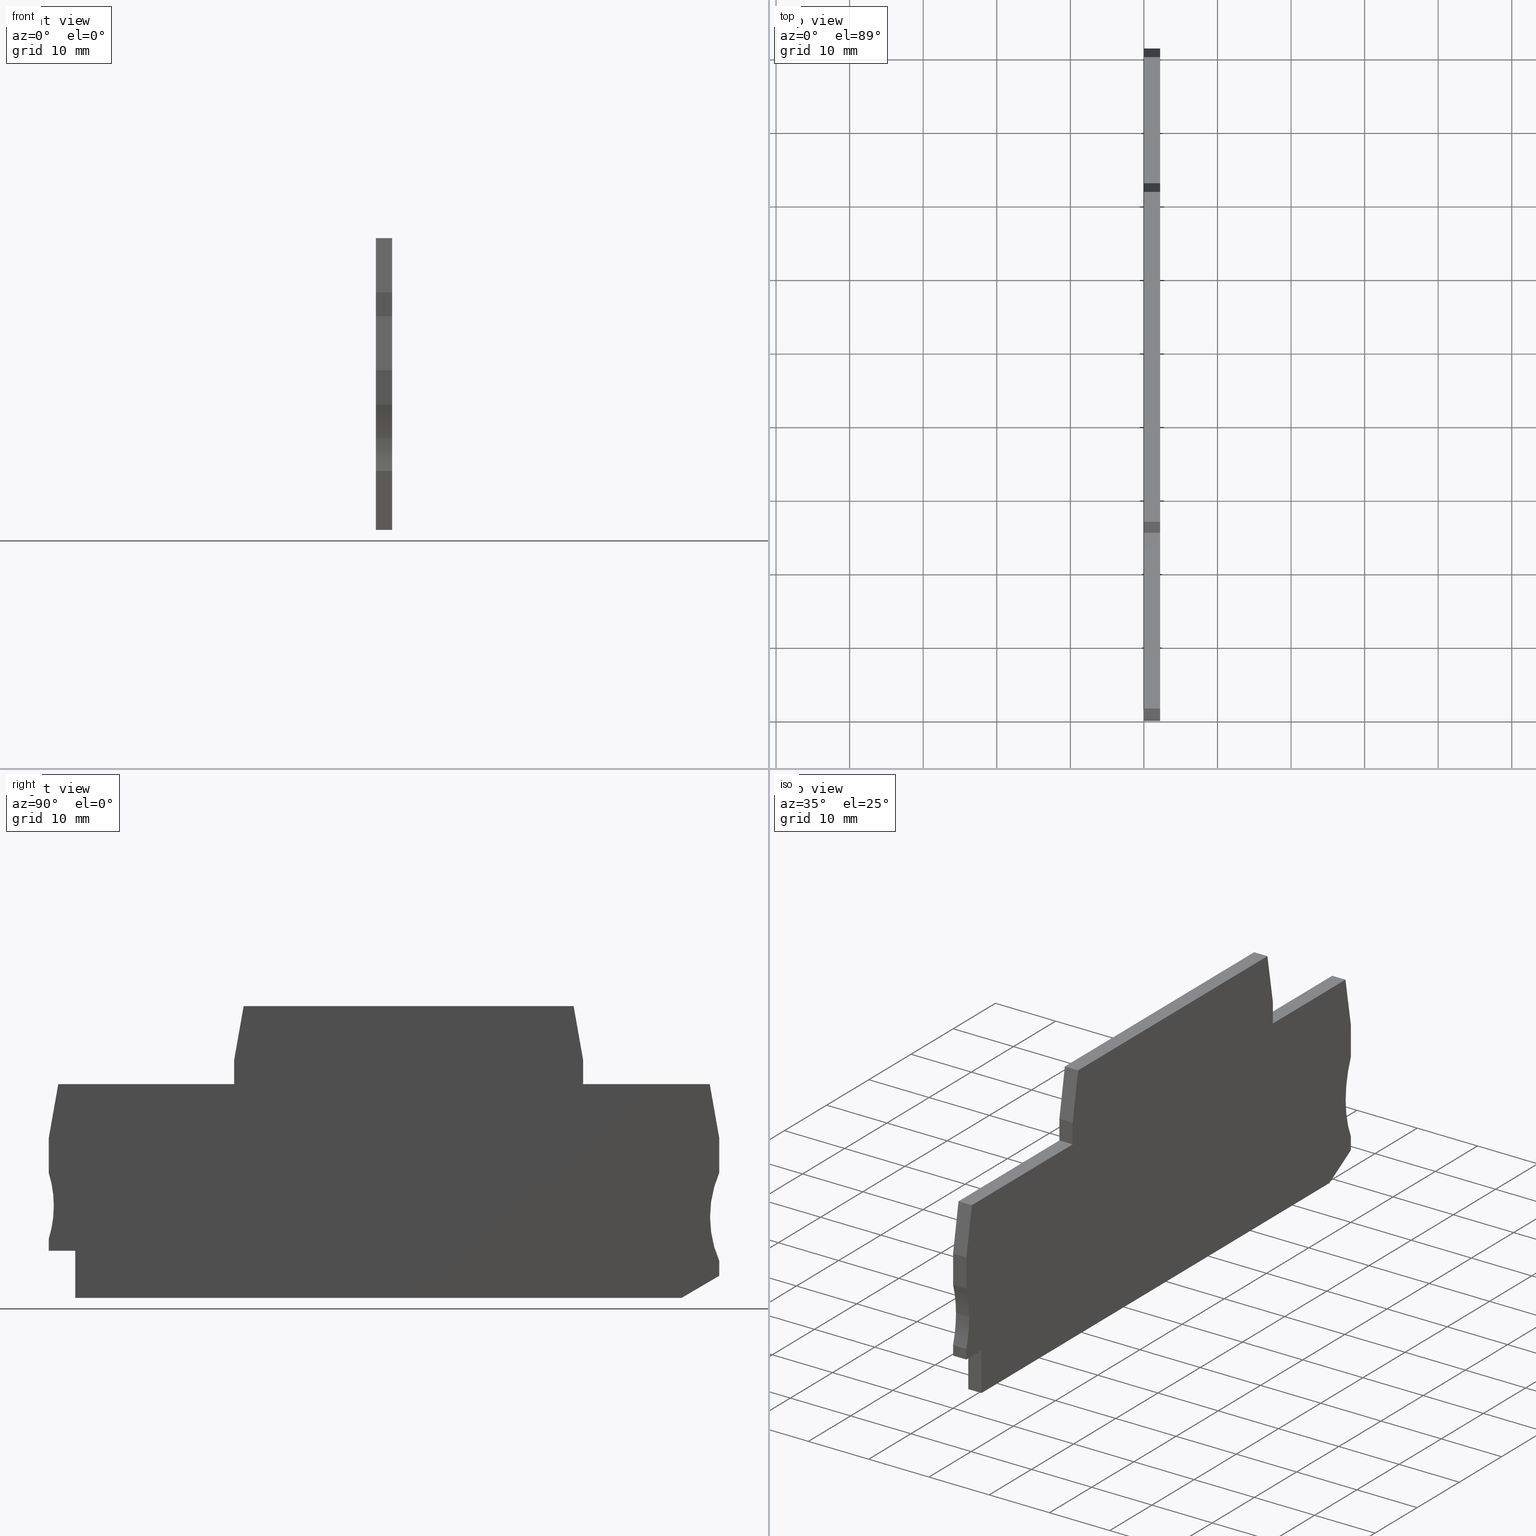
[diagram: canonical four-view strip — front | top / right | iso, engineering-drawing reading convention]
A machine part, canonical four-view strip (front | top / right | iso — engineering-drawing reading convention). The complete STEP part file that produces these views, byte-faithful:
ISO-10303-21;
HEADER;
FILE_DESCRIPTION(('STEP AP214'),'1');
FILE_NAME('cctmp_0A044B91-6385-4FD1-A2AD-C32BCBC456A5_2023_07_24_21_51_38_0145..stp','2023-07-24T19:51:38',('SIEMENS A&D'),('CADClick - www.CADClick.com'),'Spatial InterOp 3D postprocessed',' ','unknown authorization');
FILE_SCHEMA(('AUTOMOTIVE_DESIGN'));
ENDSEC;
DATA;
#1=MECHANICAL_DESIGN_GEOMETRIC_PRESENTATION_REPRESENTATION(' ',(#10,#11,#12,#13,#14,#15,#16,#17,#18,#19,#20,#21,#22,#23,#24,#25,#26,#27,#28,#29,#30,#31,#32,#33),#6);
#2=PRODUCT_DEFINITION_CONTEXT('',#34,'design');
#3=APPLICATION_PROTOCOL_DEFINITION('INTERNATIONAL STANDARD','automotive_design',1994,#34);
#4=PRODUCT_CATEGORY_RELATIONSHIP('NONE','NONE',#35,#36);
#5=SHAPE_DEFINITION_REPRESENTATION(#37,#38);
#6= (GEOMETRIC_REPRESENTATION_CONTEXT(3)GLOBAL_UNCERTAINTY_ASSIGNED_CONTEXT((#41))GLOBAL_UNIT_ASSIGNED_CONTEXT((#43,#44,#45))REPRESENTATION_CONTEXT('NONE','WORKSPACE'));
#10=STYLED_ITEM('',(#47),#48);
#11=STYLED_ITEM('',(#49),#50);
#12=STYLED_ITEM('',(#51),#52);
#13=STYLED_ITEM('',(#53),#54);
#14=STYLED_ITEM('',(#55),#56);
#15=STYLED_ITEM('',(#57),#58);
#16=STYLED_ITEM('',(#59),#60);
#17=STYLED_ITEM('',(#61),#62);
#18=STYLED_ITEM('',(#63),#64);
#19=STYLED_ITEM('',(#65),#66);
#20=STYLED_ITEM('',(#67),#68);
#21=STYLED_ITEM('',(#69),#70);
#22=STYLED_ITEM('',(#71),#72);
#23=STYLED_ITEM('',(#73),#74);
#24=STYLED_ITEM('',(#75),#76);
#25=STYLED_ITEM('',(#77),#78);
#26=STYLED_ITEM('',(#79),#80);
#27=STYLED_ITEM('',(#81),#82);
#28=STYLED_ITEM('',(#83),#84);
#29=STYLED_ITEM('',(#85),#86);
#30=STYLED_ITEM('',(#87),#88);
#31=STYLED_ITEM('',(#89),#90);
#32=STYLED_ITEM('',(#91),#92);
#33=STYLED_ITEM('',(#93),#94);
#34=APPLICATION_CONTEXT(' ');
#35=PRODUCT_CATEGORY('part','NONE');
#36=PRODUCT_RELATED_PRODUCT_CATEGORY('detail',' ',(#95));
#37=PRODUCT_DEFINITION_SHAPE('NONE','NONE',#96);
#38=ADVANCED_BREP_SHAPE_REPRESENTATION('2023_07_24_21_51_38_0145',(#94,#97),#6);
#41=UNCERTAINTY_MEASURE_WITH_UNIT(LENGTH_MEASURE(1.0E-006),#43,'','');
#43= (CONVERSION_BASED_UNIT('MILLIMETRE',#100)LENGTH_UNIT()NAMED_UNIT(#103));
#44= (NAMED_UNIT(#105)PLANE_ANGLE_UNIT()SI_UNIT($,.RADIAN.));
#45= (NAMED_UNIT(#105)SOLID_ANGLE_UNIT()SI_UNIT($,.STERADIAN.));
#47=PRESENTATION_STYLE_ASSIGNMENT((#111));
#48=ADVANCED_FACE('',(#112),#113,.F.);
#49=PRESENTATION_STYLE_ASSIGNMENT((#114));
#50=ADVANCED_FACE('',(#115),#116,.F.);
#51=PRESENTATION_STYLE_ASSIGNMENT((#117));
#52=ADVANCED_FACE('',(#118),#119,.T.);
#53=PRESENTATION_STYLE_ASSIGNMENT((#120));
#54=ADVANCED_FACE('',(#121),#122,.T.);
#55=PRESENTATION_STYLE_ASSIGNMENT((#123));
#56=ADVANCED_FACE('',(#124),#125,.F.);
#57=PRESENTATION_STYLE_ASSIGNMENT((#126));
#58=ADVANCED_FACE('',(#127),#128,.T.);
#59=PRESENTATION_STYLE_ASSIGNMENT((#129));
#60=ADVANCED_FACE('',(#130),#131,.T.);
#61=PRESENTATION_STYLE_ASSIGNMENT((#132));
#62=ADVANCED_FACE('',(#133),#134,.T.);
#63=PRESENTATION_STYLE_ASSIGNMENT((#135));
#64=ADVANCED_FACE('',(#136),#137,.T.);
#65=PRESENTATION_STYLE_ASSIGNMENT((#138));
#66=ADVANCED_FACE('',(#139),#140,.T.);
#67=PRESENTATION_STYLE_ASSIGNMENT((#141));
#68=ADVANCED_FACE('',(#142),#143,.T.);
#69=PRESENTATION_STYLE_ASSIGNMENT((#144));
#70=ADVANCED_FACE('',(#145),#146,.T.);
#71=PRESENTATION_STYLE_ASSIGNMENT((#147));
#72=ADVANCED_FACE('',(#148),#149,.T.);
#73=PRESENTATION_STYLE_ASSIGNMENT((#150));
#74=ADVANCED_FACE('',(#151),#152,.T.);
#75=PRESENTATION_STYLE_ASSIGNMENT((#153));
#76=ADVANCED_FACE('',(#154),#155,.T.);
#77=PRESENTATION_STYLE_ASSIGNMENT((#156));
#78=ADVANCED_FACE('',(#157),#158,.T.);
#79=PRESENTATION_STYLE_ASSIGNMENT((#159));
#80=ADVANCED_FACE('',(#160),#161,.T.);
#81=PRESENTATION_STYLE_ASSIGNMENT((#162));
#82=ADVANCED_FACE('',(#163),#164,.T.);
#83=PRESENTATION_STYLE_ASSIGNMENT((#165));
#84=ADVANCED_FACE('',(#166),#167,.F.);
#85=PRESENTATION_STYLE_ASSIGNMENT((#168));
#86=ADVANCED_FACE('',(#169),#170,.T.);
#87=PRESENTATION_STYLE_ASSIGNMENT((#171));
#88=ADVANCED_FACE('',(#172),#173,.T.);
#89=PRESENTATION_STYLE_ASSIGNMENT((#174));
#90=ADVANCED_FACE('',(#175),#176,.F.);
#91=PRESENTATION_STYLE_ASSIGNMENT((#177));
#92=ADVANCED_FACE('',(#178),#179,.T.);
#93=PRESENTATION_STYLE_ASSIGNMENT((#180));
#94=MANIFOLD_SOLID_BREP('2023_07_24_21_51_38_0145',#181);
#95=PRODUCT('2023_07_24_21_51_38_0145','','PART--DESC',(#182));
#96=PRODUCT_DEFINITION('','NONE',#183,#2);
#97=AXIS2_PLACEMENT_3D('',#184,#185,#186);
#100=LENGTH_MEASURE_WITH_UNIT(LENGTH_MEASURE(1.0),#187);
#103=DIMENSIONAL_EXPONENTS(1.0,0.0,0.0,0.0,0.0,0.0,0.0);
#105=DIMENSIONAL_EXPONENTS(0.0,0.0,0.0,0.0,0.0,0.0,0.0);
#111=SURFACE_STYLE_USAGE(.BOTH.,#188);
#112=FACE_OUTER_BOUND('',#189,.T.);
#113=CYLINDRICAL_SURFACE('',#190,15.0);
#114=SURFACE_STYLE_USAGE(.BOTH.,#188);
#115=FACE_OUTER_BOUND('',#192,.T.);
#116=CYLINDRICAL_SURFACE('',#193,15.0);
#117=SURFACE_STYLE_USAGE(.BOTH.,#188);
#118=FACE_OUTER_BOUND('',#195,.T.);
#119=PLANE('',#196);
#120=SURFACE_STYLE_USAGE(.BOTH.,#188);
#121=FACE_OUTER_BOUND('',#198,.T.);
#122=PLANE('',#199);
#123=SURFACE_STYLE_USAGE(.BOTH.,#188);
#124=FACE_OUTER_BOUND('',#201,.T.);
#125=CYLINDRICAL_SURFACE('',#202,15.0);
#126=SURFACE_STYLE_USAGE(.BOTH.,#188);
#127=FACE_OUTER_BOUND('',#204,.T.);
#128=PLANE('',#205);
#129=SURFACE_STYLE_USAGE(.BOTH.,#188);
#130=FACE_OUTER_BOUND('',#207,.T.);
#131=PLANE('',#208);
#132=SURFACE_STYLE_USAGE(.BOTH.,#188);
#133=FACE_OUTER_BOUND('',#210,.T.);
#134=PLANE('',#211);
#135=SURFACE_STYLE_USAGE(.BOTH.,#188);
#136=FACE_OUTER_BOUND('',#213,.T.);
#137=PLANE('',#214);
#138=SURFACE_STYLE_USAGE(.BOTH.,#188);
#139=FACE_OUTER_BOUND('',#216,.T.);
#140=PLANE('',#217);
#141=SURFACE_STYLE_USAGE(.BOTH.,#188);
#142=FACE_OUTER_BOUND('',#219,.T.);
#143=PLANE('',#220);
#144=SURFACE_STYLE_USAGE(.BOTH.,#188);
#145=FACE_OUTER_BOUND('',#222,.T.);
#146=PLANE('',#223);
#147=SURFACE_STYLE_USAGE(.BOTH.,#188);
#148=FACE_OUTER_BOUND('',#225,.T.);
#149=PLANE('',#226);
#150=SURFACE_STYLE_USAGE(.BOTH.,#188);
#151=FACE_OUTER_BOUND('',#228,.T.);
#152=PLANE('',#229);
#153=SURFACE_STYLE_USAGE(.BOTH.,#188);
#154=FACE_OUTER_BOUND('',#231,.T.);
#155=PLANE('',#232);
#156=SURFACE_STYLE_USAGE(.BOTH.,#188);
#157=FACE_OUTER_BOUND('',#234,.T.);
#158=PLANE('',#235);
#159=SURFACE_STYLE_USAGE(.BOTH.,#188);
#160=FACE_OUTER_BOUND('',#237,.T.);
#161=PLANE('',#238);
#162=SURFACE_STYLE_USAGE(.BOTH.,#188);
#163=FACE_OUTER_BOUND('',#240,.T.);
#164=PLANE('',#241);
#165=SURFACE_STYLE_USAGE(.BOTH.,#188);
#166=FACE_OUTER_BOUND('',#243,.T.);
#167=CYLINDRICAL_SURFACE('',#244,15.0);
#168=SURFACE_STYLE_USAGE(.BOTH.,#188);
#169=FACE_OUTER_BOUND('',#246,.T.);
#170=PLANE('',#247);
#171=SURFACE_STYLE_USAGE(.BOTH.,#188);
#172=FACE_OUTER_BOUND('',#249,.T.);
#173=PLANE('',#250);
#174=SURFACE_STYLE_USAGE(.BOTH.,#188);
#175=FACE_OUTER_BOUND('',#252,.T.);
#176=PLANE('',#253);
#177=SURFACE_STYLE_USAGE(.BOTH.,#188);
#178=FACE_OUTER_BOUND('',#255,.T.);
#179=PLANE('',#256);
#180=SURFACE_STYLE_USAGE(.BOTH.,#188);
#181=CLOSED_SHELL('',(#48,#50,#52,#54,#56,#58,#60,#62,#64,#66,#68,#70,#72,#74,#76,#78,#80,#82,#84,#86,#88,#90,#92));
#182=PRODUCT_CONTEXT('',#34,'mechanical');
#183=PRODUCT_DEFINITION_FORMATION_WITH_SPECIFIED_SOURCE(' ','NONE',#95,.NOT_KNOWN.);
#184=CARTESIAN_POINT('',(0.0,0.0,0.0));
#185=DIRECTION('',(0.0,0.0,1.0));
#186=DIRECTION('',(1.0,0.0,0.0));
#187= (NAMED_UNIT(#103)LENGTH_UNIT()SI_UNIT(.MILLI.,.METRE.));
#188=SURFACE_SIDE_STYLE('',(#259));
#189=EDGE_LOOP('',(#260,#261,#262,#263));
#190=AXIS2_PLACEMENT_3D('',#264,#265,#266);
#192=EDGE_LOOP('',(#268,#269,#270,#271));
#193=AXIS2_PLACEMENT_3D('',#272,#273,#274);
#195=EDGE_LOOP('',(#276,#277,#278,#279));
#196=AXIS2_PLACEMENT_3D('',#280,#281,#282);
#198=EDGE_LOOP('',(#284,#285,#286,#287));
#199=AXIS2_PLACEMENT_3D('',#288,#289,#290);
#201=EDGE_LOOP('',(#292,#293,#294,#295));
#202=AXIS2_PLACEMENT_3D('',#296,#297,#298);
#204=EDGE_LOOP('',(#300,#301,#302,#303));
#205=AXIS2_PLACEMENT_3D('',#304,#305,#306);
#207=EDGE_LOOP('',(#308,#309,#310,#311));
#208=AXIS2_PLACEMENT_3D('',#312,#313,#314);
#210=EDGE_LOOP('',(#316,#317,#318,#319));
#211=AXIS2_PLACEMENT_3D('',#320,#321,#322);
#213=EDGE_LOOP('',(#324,#325,#326,#327));
#214=AXIS2_PLACEMENT_3D('',#328,#329,#330);
#216=EDGE_LOOP('',(#332,#333,#334,#335));
#217=AXIS2_PLACEMENT_3D('',#336,#337,#338);
#219=EDGE_LOOP('',(#340,#341,#342,#343));
#220=AXIS2_PLACEMENT_3D('',#344,#345,#346);
#222=EDGE_LOOP('',(#348,#349,#350,#351));
#223=AXIS2_PLACEMENT_3D('',#352,#353,#354);
#225=EDGE_LOOP('',(#356,#357,#358,#359));
#226=AXIS2_PLACEMENT_3D('',#360,#361,#362);
#228=EDGE_LOOP('',(#364,#365,#366,#367));
#229=AXIS2_PLACEMENT_3D('',#368,#369,#370);
#231=EDGE_LOOP('',(#372,#373,#374,#375));
#232=AXIS2_PLACEMENT_3D('',#376,#377,#378);
#234=EDGE_LOOP('',(#380,#381,#382,#383));
#235=AXIS2_PLACEMENT_3D('',#384,#385,#386);
#237=EDGE_LOOP('',(#388,#389,#390,#391));
#238=AXIS2_PLACEMENT_3D('',#392,#393,#394);
#240=EDGE_LOOP('',(#396,#397,#398,#399));
#241=AXIS2_PLACEMENT_3D('',#400,#401,#402);
#243=EDGE_LOOP('',(#404,#405,#406,#407));
#244=AXIS2_PLACEMENT_3D('',#408,#409,#410);
#246=EDGE_LOOP('',(#412,#413,#414,#415));
#247=AXIS2_PLACEMENT_3D('',#416,#417,#418);
#249=EDGE_LOOP('',(#420,#421,#422,#423));
#250=AXIS2_PLACEMENT_3D('',#424,#425,#426);
#252=EDGE_LOOP('',(#428,#429,#430,#431,#432,#433,#434,#435,#436,#437,#438,#439,#440,#441,#442,#443,#444,#445,#446,#447,#448));
#253=AXIS2_PLACEMENT_3D('',#449,#450,#451);
#255=EDGE_LOOP('',(#453,#454,#455,#456,#457,#458,#459,#460,#461,#462,#463,#464,#465,#466,#467,#468,#469,#470,#471,#472,#473));
#256=AXIS2_PLACEMENT_3D('',#474,#475,#476);
#259=SURFACE_STYLE_FILL_AREA(#478);
#260=ORIENTED_EDGE('',*,*,#479,.F.);
#261=ORIENTED_EDGE('',*,*,#480,.F.);
#262=ORIENTED_EDGE('',*,*,#481,.F.);
#263=ORIENTED_EDGE('',*,*,#482,.T.);
#264=CARTESIAN_POINT('',(0.0,104.897727098835,10.9999999999986));
#265=DIRECTION('',(-1.0,-4.7037256739877E-017,2.46511816930322E-018));
#266=DIRECTION('',(-4.7037256739877E-017,1.0,4.85722573273506E-017));
#268=ORIENTED_EDGE('',*,*,#484,.F.);
#269=ORIENTED_EDGE('',*,*,#485,.F.);
#270=ORIENTED_EDGE('',*,*,#486,.T.);
#271=ORIENTED_EDGE('',*,*,#487,.T.);
#272=CARTESIAN_POINT('',(0.0,-14.3090880072857,12.5000000000046));
#273=DIRECTION('',(1.0,4.7037256739877E-017,-2.46511816930322E-018));
#274=DIRECTION('',(4.7037256739877E-017,-1.0,-4.85722573273506E-017));
#276=ORIENTED_EDGE('',*,*,#486,.F.);
#277=ORIENTED_EDGE('',*,*,#489,.T.);
#278=ORIENTED_EDGE('',*,*,#490,.T.);
#279=ORIENTED_EDGE('',*,*,#491,.F.);
#280=CARTESIAN_POINT('',(0.0,1.39677993615805E-008,17.2972542057983));
#281=DIRECTION('',(4.7037256739877E-017,-1.0,-4.85722573273506E-017));
#282=DIRECTION('',(1.0,4.7037256739877E-017,-2.46511816930322E-018));
#284=ORIENTED_EDGE('',*,*,#493,.F.);
#285=ORIENTED_EDGE('',*,*,#494,.F.);
#286=ORIENTED_EDGE('',*,*,#495,.T.);
#287=ORIENTED_EDGE('',*,*,#496,.T.);
#288=CARTESIAN_POINT('',(0.0,26.9155525542731,39.6499999999919));
#289=DIRECTION('',(2.46511816930322E-018,-4.85722573273506E-017,1.0));
#290=DIRECTION('',(-4.7037256739877E-017,1.0,4.85722573273506E-017));
#292=ORIENTED_EDGE('',*,*,#484,.T.);
#293=ORIENTED_EDGE('',*,*,#498,.T.);
#294=ORIENTED_EDGE('',*,*,#499,.F.);
#295=ORIENTED_EDGE('',*,*,#500,.F.);
#296=CARTESIAN_POINT('',(0.0,-14.3090880072857,12.5000000000046));
#297=DIRECTION('',(1.0,4.7037256739877E-017,-2.46511816930322E-018));
#298=DIRECTION('',(4.7037256739877E-017,-1.0,-4.85722573273506E-017));
#300=ORIENTED_EDGE('',*,*,#502,.F.);
#301=ORIENTED_EDGE('',*,*,#503,.T.);
#302=ORIENTED_EDGE('',*,*,#504,.T.);
#303=ORIENTED_EDGE('',*,*,#494,.T.);
#304=CARTESIAN_POINT('',(0.0,25.2075955539732,32.3430797570744));
#305=DIRECTION('',(4.67507183956898E-017,-0.984807753012208,0.17364817766693));
#306=DIRECTION('',(1.0,4.7037256739877E-017,-2.46511816930322E-018));
#308=ORIENTED_EDGE('',*,*,#506,.F.);
#309=ORIENTED_EDGE('',*,*,#507,.F.);
#310=ORIENTED_EDGE('',*,*,#508,.T.);
#311=ORIENTED_EDGE('',*,*,#499,.T.);
#312=CARTESIAN_POINT('',(0.0,0.0,7.4000000000067));
#313=DIRECTION('',(4.7037256739877E-017,-1.0,-2.0446619030417E-018));
#314=DIRECTION('',(1.0,4.7037256739877E-017,-2.46511816930322E-018));
#316=ORIENTED_EDGE('',*,*,#510,.F.);
#317=ORIENTED_EDGE('',*,*,#490,.F.);
#318=ORIENTED_EDGE('',*,*,#511,.T.);
#319=ORIENTED_EDGE('',*,*,#512,.T.);
#320=CARTESIAN_POINT('',(0.0,0.00759613746170373,21.7430815080946));
#321=DIRECTION('',(4.67507183956898E-017,-0.984807753012209,0.173648177666926));
#322=DIRECTION('',(1.0,4.7037256739877E-017,-2.46511816930322E-018));
#324=ORIENTED_EDGE('',*,*,#514,.F.);
#325=ORIENTED_EDGE('',*,*,#515,.T.);
#326=ORIENTED_EDGE('',*,*,#507,.T.);
#327=ORIENTED_EDGE('',*,*,#516,.F.);
#328=CARTESIAN_POINT('',(0.0,3.0999996912632,6.4000000000065));
#329=DIRECTION('',(-2.46511816929899E-018,-8.99995757206863E-014,-1.0));
#330=DIRECTION('',(4.70372567398772E-017,-1.0,8.99995757206863E-014));
#332=ORIENTED_EDGE('',*,*,#512,.F.);
#333=ORIENTED_EDGE('',*,*,#518,.T.);
#334=ORIENTED_EDGE('',*,*,#519,.F.);
#335=ORIENTED_EDGE('',*,*,#520,.F.);
#336=CARTESIAN_POINT('',(0.0,1.7155528290119,29.0500000000041));
#337=DIRECTION('',(2.46511851528901E-018,-4.85722573273506E-017,1.0));
#338=DIRECTION('',(-5.88252602212242E-013,1.0,4.85722573273521E-017));
#340=ORIENTED_EDGE('',*,*,#522,.F.);
#341=ORIENTED_EDGE('',*,*,#523,.T.);
#342=ORIENTED_EDGE('',*,*,#514,.T.);
#343=ORIENTED_EDGE('',*,*,#524,.F.);
#344=CARTESIAN_POINT('',(0.0,3.5999996912629,0.999999999994699));
#345=DIRECTION('',(4.70372567398772E-017,-1.0,8.99995757206863E-014));
#346=DIRECTION('',(1.0,4.7037256739877E-017,-2.46511816930322E-018));
#348=ORIENTED_EDGE('',*,*,#526,.F.);
#349=ORIENTED_EDGE('',*,*,#519,.T.);
#350=ORIENTED_EDGE('',*,*,#527,.T.);
#351=ORIENTED_EDGE('',*,*,#503,.F.);
#352=CARTESIAN_POINT('',(0.0,25.1999994304793,29.0499999999902));
#353=DIRECTION('',(4.7037256739877E-017,-1.0,-4.85722573273506E-017));
#354=DIRECTION('',(1.0,4.7037256739877E-017,-2.46511816930322E-018));
#356=ORIENTED_EDGE('',*,*,#529,.F.);
#357=ORIENTED_EDGE('',*,*,#530,.T.);
#358=ORIENTED_EDGE('',*,*,#522,.T.);
#359=ORIENTED_EDGE('',*,*,#531,.F.);
#360=CARTESIAN_POINT('',(0.0,85.5009165593433,-1.98951966012828E-013));
#361=DIRECTION('',(-2.46511816930322E-018,4.85722573273506E-017,-1.0));
#362=DIRECTION('',(-1.0,-4.7037256739877E-017,2.46511816930322E-018));
#364=ORIENTED_EDGE('',*,*,#533,.F.);
#365=ORIENTED_EDGE('',*,*,#534,.T.);
#366=ORIENTED_EDGE('',*,*,#535,.T.);
#367=ORIENTED_EDGE('',*,*,#536,.F.);
#368=CARTESIAN_POINT('',(0.0,89.9268504579437,28.6368240888317));
#369=DIRECTION('',(-4.58945918400235E-017,0.984807753012208,0.17364817766693));
#370=DIRECTION('',(-1.0,-4.7037256739877E-017,2.46511816930322E-018));
#372=ORIENTED_EDGE('',*,*,#538,.F.);
#373=ORIENTED_EDGE('',*,*,#539,.F.);
#374=ORIENTED_EDGE('',*,*,#540,.T.);
#375=ORIENTED_EDGE('',*,*,#529,.T.);
#376=CARTESIAN_POINT('',(0.0,90.163276831043,2.4200280211558));
#377=DIRECTION('',(-2.59562038284795E-017,0.506638408537598,-0.862158641431198));
#378=DIRECTION('',(-1.0,-4.7037256739877E-017,2.46511816930322E-018));
#380=ORIENTED_EDGE('',*,*,#542,.F.);
#381=ORIENTED_EDGE('',*,*,#543,.T.);
#382=ORIENTED_EDGE('',*,*,#544,.F.);
#383=ORIENTED_EDGE('',*,*,#545,.F.);
#384=CARTESIAN_POINT('',(0.0,72.6500000139878,32.2562556681296));
#385=DIRECTION('',(-4.70372567398005E-017,1.0,4.85722573273506E-017));
#386=DIRECTION('',(-8.74267624532976E-015,-4.8572257327351E-017,1.0));
#388=ORIENTED_EDGE('',*,*,#547,.F.);
#389=ORIENTED_EDGE('',*,*,#548,.T.);
#390=ORIENTED_EDGE('',*,*,#539,.T.);
#391=ORIENTED_EDGE('',*,*,#549,.F.);
#392=CARTESIAN_POINT('',(0.0,91.1500000139677,4.5961658625049));
#393=DIRECTION('',(-4.7037256739877E-017,1.0,4.85722573273506E-017));
#394=DIRECTION('',(2.46511816930322E-018,-4.85722573273506E-017,1.0));
#396=ORIENTED_EDGE('',*,*,#551,.F.);
#397=ORIENTED_EDGE('',*,*,#496,.F.);
#398=ORIENTED_EDGE('',*,*,#552,.T.);
#399=ORIENTED_EDGE('',*,*,#542,.T.);
#400=CARTESIAN_POINT('',(0.0,71.4268507666805,39.2368240888256));
#401=DIRECTION('',(-4.58945918400235E-017,0.984807753012208,0.173648177666931));
#402=DIRECTION('',(-1.0,-4.7037256739877E-017,2.46511816930322E-018));
#404=ORIENTED_EDGE('',*,*,#479,.T.);
#405=ORIENTED_EDGE('',*,*,#554,.T.);
#406=ORIENTED_EDGE('',*,*,#547,.T.);
#407=ORIENTED_EDGE('',*,*,#555,.F.);
#408=CARTESIAN_POINT('',(0.0,104.897727098835,10.9999999999986));
#409=DIRECTION('',(-1.0,-4.7037256739877E-017,2.46511816930322E-018));
#410=DIRECTION('',(-4.7037256739877E-017,1.0,4.85722573273506E-017));
#412=ORIENTED_EDGE('',*,*,#557,.F.);
#413=ORIENTED_EDGE('',*,*,#544,.T.);
#414=ORIENTED_EDGE('',*,*,#558,.T.);
#415=ORIENTED_EDGE('',*,*,#533,.T.);
#416=CARTESIAN_POINT('',(0.0,72.6500000139878,29.0499999999983));
#417=DIRECTION('',(2.46511816930322E-018,-4.85722573273506E-017,1.0));
#418=DIRECTION('',(-4.7037256739877E-017,1.0,4.85722573273506E-017));
#420=ORIENTED_EDGE('',*,*,#560,.F.);
#421=ORIENTED_EDGE('',*,*,#535,.F.);
#422=ORIENTED_EDGE('',*,*,#561,.T.);
#423=ORIENTED_EDGE('',*,*,#481,.T.);
#424=CARTESIAN_POINT('',(0.0,91.1500000139677,21.6562539173158));
#425=DIRECTION('',(-4.7037256739877E-017,1.0,4.85722573273506E-017));
#426=DIRECTION('',(2.46511816930322E-018,-4.85722573273506E-017,1.0));
#428=ORIENTED_EDGE('',*,*,#482,.F.);
#429=ORIENTED_EDGE('',*,*,#561,.F.);
#430=ORIENTED_EDGE('',*,*,#534,.F.);
#431=ORIENTED_EDGE('',*,*,#558,.F.);
#432=ORIENTED_EDGE('',*,*,#543,.F.);
#433=ORIENTED_EDGE('',*,*,#552,.F.);
#434=ORIENTED_EDGE('',*,*,#495,.F.);
#435=ORIENTED_EDGE('',*,*,#504,.F.);
#436=ORIENTED_EDGE('',*,*,#527,.F.);
#437=ORIENTED_EDGE('',*,*,#518,.F.);
#438=ORIENTED_EDGE('',*,*,#511,.F.);
#439=ORIENTED_EDGE('',*,*,#489,.F.);
#440=ORIENTED_EDGE('',*,*,#485,.T.);
#441=ORIENTED_EDGE('',*,*,#500,.T.);
#442=ORIENTED_EDGE('',*,*,#508,.F.);
#443=ORIENTED_EDGE('',*,*,#515,.F.);
#444=ORIENTED_EDGE('',*,*,#523,.F.);
#445=ORIENTED_EDGE('',*,*,#530,.F.);
#446=ORIENTED_EDGE('',*,*,#540,.F.);
#447=ORIENTED_EDGE('',*,*,#548,.F.);
#448=ORIENTED_EDGE('',*,*,#554,.F.);
#449=CARTESIAN_POINT('',(2.2,38.169266881909,35.661519146161));
#450=DIRECTION('',(-1.0,-4.7037256739877E-017,2.46511816930322E-018));
#451=DIRECTION('',(-2.46511816930322E-018,4.85722573273506E-017,-1.0));
#453=ORIENTED_EDGE('',*,*,#549,.T.);
#454=ORIENTED_EDGE('',*,*,#538,.T.);
#455=ORIENTED_EDGE('',*,*,#531,.T.);
#456=ORIENTED_EDGE('',*,*,#524,.T.);
#457=ORIENTED_EDGE('',*,*,#516,.T.);
#458=ORIENTED_EDGE('',*,*,#506,.T.);
#459=ORIENTED_EDGE('',*,*,#498,.F.);
#460=ORIENTED_EDGE('',*,*,#487,.F.);
#461=ORIENTED_EDGE('',*,*,#491,.T.);
#462=ORIENTED_EDGE('',*,*,#510,.T.);
#463=ORIENTED_EDGE('',*,*,#520,.T.);
#464=ORIENTED_EDGE('',*,*,#526,.T.);
#465=ORIENTED_EDGE('',*,*,#502,.T.);
#466=ORIENTED_EDGE('',*,*,#493,.T.);
#467=ORIENTED_EDGE('',*,*,#551,.T.);
#468=ORIENTED_EDGE('',*,*,#545,.T.);
#469=ORIENTED_EDGE('',*,*,#557,.T.);
#470=ORIENTED_EDGE('',*,*,#536,.T.);
#471=ORIENTED_EDGE('',*,*,#560,.T.);
#472=ORIENTED_EDGE('',*,*,#480,.T.);
#473=ORIENTED_EDGE('',*,*,#555,.T.);
#474=CARTESIAN_POINT('',(0.0,59.7488511527881,39.0160702764117));
#475=DIRECTION('',(-1.0,-4.7037256739877E-017,2.46511816930322E-018));
#476=DIRECTION('',(-2.46511816930322E-018,4.85722573273506E-017,-1.0));
#478=FILL_AREA_STYLE('',(#565));
#479=EDGE_CURVE('',#566,#567,#568,.T.);
#480=EDGE_CURVE('',#569,#566,#570,.T.);
#481=EDGE_CURVE('',#571,#569,#572,.T.);
#482=EDGE_CURVE('',#571,#567,#573,.T.);
#484=EDGE_CURVE('',#575,#576,#577,.T.);
#485=EDGE_CURVE('',#578,#575,#579,.T.);
#486=EDGE_CURVE('',#578,#580,#581,.T.);
#487=EDGE_CURVE('',#580,#576,#582,.T.);
#489=EDGE_CURVE('',#578,#584,#585,.T.);
#490=EDGE_CURVE('',#584,#586,#587,.T.);
#491=EDGE_CURVE('',#580,#586,#588,.T.);
#493=EDGE_CURVE('',#590,#591,#592,.T.);
#494=EDGE_CURVE('',#593,#590,#594,.T.);
#495=EDGE_CURVE('',#593,#595,#596,.T.);
#496=EDGE_CURVE('',#595,#591,#597,.T.);
#498=EDGE_CURVE('',#576,#599,#600,.T.);
#499=EDGE_CURVE('',#601,#599,#602,.T.);
#500=EDGE_CURVE('',#575,#601,#603,.T.);
#502=EDGE_CURVE('',#605,#590,#606,.T.);
#503=EDGE_CURVE('',#605,#607,#608,.T.);
#504=EDGE_CURVE('',#607,#593,#609,.T.);
#506=EDGE_CURVE('',#611,#599,#612,.T.);
#507=EDGE_CURVE('',#613,#611,#614,.T.);
#508=EDGE_CURVE('',#613,#601,#615,.T.);
#510=EDGE_CURVE('',#586,#617,#618,.T.);
#511=EDGE_CURVE('',#584,#619,#620,.T.);
#512=EDGE_CURVE('',#619,#617,#621,.T.);
#514=EDGE_CURVE('',#623,#624,#625,.T.);
#515=EDGE_CURVE('',#623,#613,#626,.T.);
#516=EDGE_CURVE('',#624,#611,#627,.T.);
#518=EDGE_CURVE('',#619,#629,#630,.T.);
#519=EDGE_CURVE('',#631,#629,#632,.T.);
#520=EDGE_CURVE('',#617,#631,#633,.T.);
#522=EDGE_CURVE('',#635,#636,#637,.T.);
#523=EDGE_CURVE('',#635,#623,#638,.T.);
#524=EDGE_CURVE('',#636,#624,#639,.T.);
#526=EDGE_CURVE('',#631,#605,#641,.T.);
#527=EDGE_CURVE('',#629,#607,#642,.T.);
#529=EDGE_CURVE('',#644,#645,#646,.T.);
#530=EDGE_CURVE('',#644,#635,#647,.T.);
#531=EDGE_CURVE('',#645,#636,#648,.T.);
#533=EDGE_CURVE('',#650,#651,#652,.T.);
#534=EDGE_CURVE('',#650,#653,#654,.T.);
#535=EDGE_CURVE('',#653,#655,#656,.T.);
#536=EDGE_CURVE('',#651,#655,#657,.T.);
#538=EDGE_CURVE('',#659,#645,#660,.T.);
#539=EDGE_CURVE('',#661,#659,#662,.T.);
#540=EDGE_CURVE('',#661,#644,#663,.T.);
#542=EDGE_CURVE('',#665,#666,#667,.T.);
#543=EDGE_CURVE('',#665,#668,#669,.T.);
#544=EDGE_CURVE('',#670,#668,#671,.T.);
#545=EDGE_CURVE('',#666,#670,#672,.T.);
#547=EDGE_CURVE('',#674,#675,#676,.T.);
#548=EDGE_CURVE('',#674,#661,#677,.T.);
#549=EDGE_CURVE('',#675,#659,#678,.T.);
#551=EDGE_CURVE('',#591,#666,#680,.T.);
#552=EDGE_CURVE('',#595,#665,#681,.T.);
#554=EDGE_CURVE('',#567,#674,#683,.T.);
#555=EDGE_CURVE('',#566,#675,#684,.T.);
#557=EDGE_CURVE('',#670,#651,#686,.T.);
#558=EDGE_CURVE('',#668,#650,#687,.T.);
#560=EDGE_CURVE('',#655,#569,#689,.T.);
#561=EDGE_CURVE('',#653,#571,#690,.T.);
#565=FILL_AREA_STYLE_COLOUR('',#694);
#566=VERTEX_POINT('',#695);
#567=VERTEX_POINT('',#696);
#568=LINE('',#697,#698);
#569=VERTEX_POINT('',#699);
#570=CIRCLE('',#700,15.0);
#571=VERTEX_POINT('',#701);
#572=LINE('',#702,#703);
#573=CIRCLE('',#704,15.0);
#575=VERTEX_POINT('',#706);
#576=VERTEX_POINT('',#707);
#577=LINE('',#708,#709);
#578=VERTEX_POINT('',#710);
#579=CIRCLE('',#711,15.0);
#580=VERTEX_POINT('',#712);
#581=LINE('',#713,#714);
#582=CIRCLE('',#715,15.0);
#584=VERTEX_POINT('',#717);
#585=LINE('',#718,#719);
#586=VERTEX_POINT('',#720);
#587=LINE('',#721,#722);
#588=LINE('',#723,#724);
#590=VERTEX_POINT('',#726);
#591=VERTEX_POINT('',#727);
#592=LINE('',#728,#729);
#593=VERTEX_POINT('',#730);
#594=LINE('',#731,#732);
#595=VERTEX_POINT('',#733);
#596=LINE('',#734,#735);
#597=LINE('',#736,#737);
#599=VERTEX_POINT('',#739);
#600=CIRCLE('',#740,15.0);
#601=VERTEX_POINT('',#741);
#602=LINE('',#742,#743);
#603=CIRCLE('',#744,15.0);
#605=VERTEX_POINT('',#746);
#606=LINE('',#747,#748);
#607=VERTEX_POINT('',#749);
#608=LINE('',#750,#751);
#609=LINE('',#752,#753);
#611=VERTEX_POINT('',#755);
#612=LINE('',#756,#757);
#613=VERTEX_POINT('',#758);
#614=LINE('',#759,#760);
#615=LINE('',#761,#762);
#617=VERTEX_POINT('',#764);
#618=LINE('',#765,#766);
#619=VERTEX_POINT('',#767);
#620=LINE('',#768,#769);
#621=LINE('',#770,#771);
#623=VERTEX_POINT('',#773);
#624=VERTEX_POINT('',#774);
#625=LINE('',#775,#776);
#626=LINE('',#777,#778);
#627=LINE('',#779,#780);
#629=VERTEX_POINT('',#782);
#630=LINE('',#783,#784);
#631=VERTEX_POINT('',#785);
#632=LINE('',#786,#787);
#633=LINE('',#788,#789);
#635=VERTEX_POINT('',#791);
#636=VERTEX_POINT('',#792);
#637=LINE('',#793,#794);
#638=LINE('',#795,#796);
#639=LINE('',#797,#798);
#641=LINE('',#800,#801);
#642=LINE('',#802,#803);
#644=VERTEX_POINT('',#805);
#645=VERTEX_POINT('',#806);
#646=LINE('',#807,#808);
#647=LINE('',#809,#810);
#648=LINE('',#811,#812);
#650=VERTEX_POINT('',#814);
#651=VERTEX_POINT('',#815);
#652=LINE('',#816,#817);
#653=VERTEX_POINT('',#818);
#654=LINE('',#819,#820);
#655=VERTEX_POINT('',#821);
#656=LINE('',#822,#823);
#657=LINE('',#824,#825);
#659=VERTEX_POINT('',#827);
#660=LINE('',#828,#829);
#661=VERTEX_POINT('',#830);
#662=LINE('',#831,#832);
#663=LINE('',#833,#834);
#665=VERTEX_POINT('',#836);
#666=VERTEX_POINT('',#837);
#667=LINE('',#838,#839);
#668=VERTEX_POINT('',#840);
#669=LINE('',#841,#842);
#670=VERTEX_POINT('',#843);
#671=LINE('',#844,#845);
#672=LINE('',#846,#847);
#674=VERTEX_POINT('',#849);
#675=VERTEX_POINT('',#850);
#676=LINE('',#851,#852);
#677=LINE('',#853,#854);
#678=LINE('',#855,#856);
#680=LINE('',#858,#859);
#681=LINE('',#860,#861);
#683=CIRCLE('',#863,15.0);
#684=CIRCLE('',#864,15.0);
#686=LINE('',#866,#867);
#687=LINE('',#868,#869);
#689=LINE('',#871,#872);
#690=LINE('',#873,#874);
#694=COLOUR_RGB('',0.560784339904785,0.588235318660736,0.600000023841858);
#695=CARTESIAN_POINT('',(7.00572203590995E-016,89.8977270988352,10.9999999999986));
#696=CARTESIAN_POINT('',(2.2,89.8977270988352,10.9999999999986));
#697=CARTESIAN_POINT('',(1.1,89.8977270988352,10.9999999999986));
#698=VECTOR('',#878,1.0);
#699=CARTESIAN_POINT('',(0.0,91.1500000139677,16.9999999999987));
#700=AXIS2_PLACEMENT_3D('',#879,#880,#881);
#701=CARTESIAN_POINT('',(2.2,91.1500000139677,16.9999999999987));
#702=CARTESIAN_POINT('',(0.0,91.1500000139677,16.9999999999987));
#703=VECTOR('',#882,1.0);
#704=AXIS2_PLACEMENT_3D('',#883,#884,#885);
#706=CARTESIAN_POINT('',(2.19999999999999,0.690911992714305,12.5000000000046));
#707=CARTESIAN_POINT('',(-6.93970984133115E-016,0.690911992714305,12.5000000000046));
#708=CARTESIAN_POINT('',(1.1,0.690911992714305,12.5000000000046));
#709=VECTOR('',#886,1.0);
#710=CARTESIAN_POINT('',(2.2,1.39677993615805E-008,17.0000000000067));
#711=AXIS2_PLACEMENT_3D('',#887,#888,#889);
#712=CARTESIAN_POINT('',(0.0,1.39677993615805E-008,17.0000000000067));
#713=CARTESIAN_POINT('',(0.0,1.39677993615805E-008,17.0000000000067));
#714=VECTOR('',#890,1.0);
#715=AXIS2_PLACEMENT_3D('',#891,#892,#893);
#717=CARTESIAN_POINT('',(2.2,1.39677993615805E-008,21.7000017510241));
#718=CARTESIAN_POINT('',(2.2,1.39677993615805E-008,38.2000000000068));
#719=VECTOR('',#894,1.0);
#720=CARTESIAN_POINT('',(0.0,1.39677993615805E-008,21.7000017510241));
#721=CARTESIAN_POINT('',(-48.52,1.39677993615805E-008,21.7000017510241));
#722=VECTOR('',#895,1.0);
#723=CARTESIAN_POINT('',(0.0,1.39677993615805E-008,38.2000000000068));
#724=VECTOR('',#896,1.0);
#726=CARTESIAN_POINT('',(0.0,26.4960027386844,39.6499999999919));
#727=CARTESIAN_POINT('',(0.0,71.3539967057631,39.6499999999919));
#728=CARTESIAN_POINT('',(0.0,61.6211162538102,39.6499999999919));
#729=VECTOR('',#897,1.0);
#730=CARTESIAN_POINT('',(2.2,26.4960027386844,39.6499999999919));
#731=CARTESIAN_POINT('',(-48.52,26.4960027386844,39.6499999999919));
#732=VECTOR('',#898,1.0);
#733=CARTESIAN_POINT('',(2.2,71.3539967057631,39.6499999999919));
#734=CARTESIAN_POINT('',(2.2,61.6211162538102,39.6499999999919));
#735=VECTOR('',#899,1.0);
#736=CARTESIAN_POINT('',(-48.52,71.3539967057631,39.6499999999919));
#737=VECTOR('',#900,1.0);
#739=CARTESIAN_POINT('',(0.0,0.0,7.9999999555878));
#740=AXIS2_PLACEMENT_3D('',#901,#902,#903);
#741=CARTESIAN_POINT('',(2.2,0.0,7.9999999555878));
#742=CARTESIAN_POINT('',(0.0,0.0,7.9999999555878));
#743=VECTOR('',#904,1.0);
#744=AXIS2_PLACEMENT_3D('',#905,#906,#907);
#746=CARTESIAN_POINT('',(0.0,25.1999994304793,32.3000000000039));
#747=CARTESIAN_POINT('',(0.0,26.2403286166598,38.2000000000068));
#748=VECTOR('',#908,1.0);
#749=CARTESIAN_POINT('',(2.2,25.1999994304793,32.3000000000039));
#750=CARTESIAN_POINT('',(-48.52,25.1999994304793,32.3000000000039));
#751=VECTOR('',#909,1.0);
#752=CARTESIAN_POINT('',(2.2,26.2403286166598,38.2000000000068));
#753=VECTOR('',#910,1.0);
#755=CARTESIAN_POINT('',(0.0,0.0,6.4000000000067));
#756=CARTESIAN_POINT('',(0.0,0.0,38.2000000000068));
#757=VECTOR('',#911,1.0);
#758=CARTESIAN_POINT('',(2.2,0.0,6.4000000000067));
#759=CARTESIAN_POINT('',(-48.52,0.0,6.4000000000067));
#760=VECTOR('',#912,1.0);
#761=CARTESIAN_POINT('',(2.2,0.0,38.2000000000068));
#762=VECTOR('',#913,1.0);
#764=CARTESIAN_POINT('',(0.0,1.296003013423,29.0500000000043));
#765=CARTESIAN_POINT('',(0.0,2.9093948869058,38.2000000000068));
#766=VECTOR('',#914,1.0);
#767=CARTESIAN_POINT('',(2.2,1.296003013423,29.0500000000043));
#768=CARTESIAN_POINT('',(2.2,2.9093948869058,38.2000000000068));
#769=VECTOR('',#915,1.0);
#770=CARTESIAN_POINT('',(-48.52,1.296003013423,29.0500000000043));
#771=VECTOR('',#916,1.0);
#773=CARTESIAN_POINT('',(2.2,3.5999996912634,6.4000000000064));
#774=CARTESIAN_POINT('',(0.0,3.5999996912634,6.4000000000064));
#775=CARTESIAN_POINT('',(-48.52,3.5999996912634,6.4000000000064));
#776=VECTOR('',#917,1.0);
#777=CARTESIAN_POINT('',(2.2,61.6211162538102,6.4000000000012));
#778=VECTOR('',#918,1.0);
#779=CARTESIAN_POINT('',(0.0,61.6211162538102,6.4000000000012));
#780=VECTOR('',#919,1.0);
#782=CARTESIAN_POINT('',(2.2,25.1999994304793,29.0499999999902));
#783=CARTESIAN_POINT('',(2.2,61.6211162538102,29.0499999999688));
#784=VECTOR('',#920,1.0);
#785=CARTESIAN_POINT('',(0.0,25.1999994304793,29.0499999999902));
#786=CARTESIAN_POINT('',(-48.52,25.1999994304793,29.0499999999902));
#787=VECTOR('',#921,1.0);
#788=CARTESIAN_POINT('',(0.0,61.6211162538102,29.0499999999688));
#789=VECTOR('',#922,1.0);
#791=CARTESIAN_POINT('',(2.2,3.5999996912628,-1.98951966012828E-013));
#792=CARTESIAN_POINT('',(0.0,3.5999996912628,-1.98951966012828E-013));
#793=CARTESIAN_POINT('',(-48.52,3.5999996912628,-1.98951966012828E-013));
#794=VECTOR('',#923,1.0);
#795=CARTESIAN_POINT('',(2.2,3.5999996912662,38.2000000000068));
#796=VECTOR('',#924,1.0);
#797=CARTESIAN_POINT('',(0.0,3.5999996912662,38.2000000000068));
#798=VECTOR('',#925,1.0);
#800=CARTESIAN_POINT('',(0.0,25.1999994304793,38.2000000000068));
#801=VECTOR('',#926,1.0);
#802=CARTESIAN_POINT('',(2.2,25.1999994304793,38.2000000000068));
#803=VECTOR('',#927,1.0);
#805=CARTESIAN_POINT('',(2.2,86.0450575334422,-1.98951966012828E-013));
#806=CARTESIAN_POINT('',(0.0,86.0450575334422,-1.98951966012828E-013));
#807=CARTESIAN_POINT('',(-48.52,86.0450575334422,-1.98951966012828E-013));
#808=VECTOR('',#928,1.0);
#809=CARTESIAN_POINT('',(2.2,61.6211162538102,-1.98951966012828E-013));
#810=VECTOR('',#929,1.0);
#811=CARTESIAN_POINT('',(0.0,61.6211162538102,-1.98951966012828E-013));
#812=VECTOR('',#930,1.0);
#814=CARTESIAN_POINT('',(2.2,89.8539963970262,29.0499999999983));
#815=CARTESIAN_POINT('',(0.0,89.8539963970262,29.0499999999983));
#816=CARTESIAN_POINT('',(-48.52,89.8539963970262,29.0499999999983));
#817=VECTOR('',#931,1.0);
#818=CARTESIAN_POINT('',(2.2,91.1500000139677,21.6999982490788));
#819=CARTESIAN_POINT('',(2.2,88.2406045235422,38.2000000000068));
#820=VECTOR('',#932,1.0);
#821=CARTESIAN_POINT('',(0.0,91.1500000139677,21.6999982490788));
#822=CARTESIAN_POINT('',(-48.52,91.1500000139677,21.6999982490788));
#823=VECTOR('',#933,1.0);
#824=CARTESIAN_POINT('',(0.0,88.2406045235422,38.2000000000068));
#825=VECTOR('',#934,1.0);
#827=CARTESIAN_POINT('',(0.0,91.1500000139677,2.999865465265));
#828=CARTESIAN_POINT('',(0.0,61.6211162538102,-14.3524708162613));
#829=VECTOR('',#935,1.0);
#830=CARTESIAN_POINT('',(2.2,91.1500000139677,2.999865465265));
#831=CARTESIAN_POINT('',(-48.52,91.1500000139677,2.999865465265));
#832=VECTOR('',#936,1.0);
#833=CARTESIAN_POINT('',(2.2,61.6211162538102,-14.3524708162613));
#834=VECTOR('',#937,1.0);
#836=CARTESIAN_POINT('',(2.2,72.6500000139878,32.2999999998926));
#837=CARTESIAN_POINT('',(0.0,72.6500000139878,32.2999999998926));
#838=CARTESIAN_POINT('',(-48.52,72.6500000139878,32.2999999998926));
#839=VECTOR('',#938,1.0);
#840=CARTESIAN_POINT('',(2.2,72.6500000139878,29.0499999999983));
#841=CARTESIAN_POINT('',(2.2,72.6500000139878,38.2000000000068));
#842=VECTOR('',#939,1.0);
#843=CARTESIAN_POINT('',(0.0,72.6500000139878,29.0499999999983));
#844=CARTESIAN_POINT('',(-48.52,72.6500000139878,29.0499999999983));
#845=VECTOR('',#940,1.0);
#846=CARTESIAN_POINT('',(0.0,72.6500000139878,38.2000000000068));
#847=VECTOR('',#941,1.0);
#849=CARTESIAN_POINT('',(2.2,91.1500000139677,4.9999999999986));
#850=CARTESIAN_POINT('',(0.0,91.1500000139677,4.9999999999986));
#851=CARTESIAN_POINT('',(0.0,91.1500000139677,4.9999999999986));
#852=VECTOR('',#942,1.0);
#853=CARTESIAN_POINT('',(2.2,91.1500000139677,38.2000000000068));
#854=VECTOR('',#943,1.0);
#855=CARTESIAN_POINT('',(0.0,91.1500000139677,38.2000000000068));
#856=VECTOR('',#944,1.0);
#858=CARTESIAN_POINT('',(0.0,71.6096708277877,38.2000000000068));
#859=VECTOR('',#945,1.0);
#860=CARTESIAN_POINT('',(2.2,71.6096708277877,38.2000000000068));
#861=VECTOR('',#946,1.0);
#863=AXIS2_PLACEMENT_3D('',#947,#948,#949);
#864=AXIS2_PLACEMENT_3D('',#950,#951,#952);
#866=CARTESIAN_POINT('',(0.0,61.6211162538102,29.0499999999983));
#867=VECTOR('',#953,1.0);
#868=CARTESIAN_POINT('',(2.2,61.6211162538102,29.0499999999983));
#869=VECTOR('',#954,1.0);
#871=CARTESIAN_POINT('',(0.0,91.1500000139677,38.2000000000068));
#872=VECTOR('',#955,1.0);
#873=CARTESIAN_POINT('',(2.2,91.1500000139677,38.2000000000068));
#874=VECTOR('',#956,1.0);
#878=DIRECTION('',(1.0,4.7037256739877E-017,-2.46511816930322E-018));
#879=CARTESIAN_POINT('',(0.0,104.897727098835,10.9999999999986));
#880=DIRECTION('',(1.0,4.7037256739877E-017,-2.46511816930322E-018));
#881=DIRECTION('',(-4.7037256739877E-017,1.0,4.85722573273506E-017));
#882=DIRECTION('',(-1.0,-4.7037256739877E-017,2.46511816930322E-018));
#883=CARTESIAN_POINT('',(2.2,104.897727098835,10.9999999999986));
#884=DIRECTION('',(1.0,4.7037256739877E-017,-2.46511816930322E-018));
#885=DIRECTION('',(-4.7037256739877E-017,1.0,4.85722573273506E-017));
#886=DIRECTION('',(-1.0,-4.7037256739877E-017,2.46511816930322E-018));
#887=CARTESIAN_POINT('',(2.2,-14.3090880072857,12.5000000000046));
#888=DIRECTION('',(-1.0,-4.7037256739877E-017,2.46511816930322E-018));
#889=DIRECTION('',(4.7037256739877E-017,-1.0,-4.85722573273506E-017));
#890=DIRECTION('',(-1.0,-4.7037256739877E-017,2.46511816930322E-018));
#891=CARTESIAN_POINT('',(0.0,-14.3090880072857,12.5000000000046));
#892=DIRECTION('',(-1.0,-4.7037256739877E-017,2.46511816930322E-018));
#893=DIRECTION('',(4.7037256739877E-017,-1.0,-4.85722573273506E-017));
#894=DIRECTION('',(2.46511816930322E-018,-4.85722573273506E-017,1.0));
#895=DIRECTION('',(-1.0,-4.7037256739877E-017,2.46511816930322E-018));
#896=DIRECTION('',(2.46511816930322E-018,-4.85722573273506E-017,1.0));
#897=DIRECTION('',(-4.7037256739877E-017,1.0,4.85722573273506E-017));
#898=DIRECTION('',(-1.0,-4.7037256739877E-017,2.46511816930322E-018));
#899=DIRECTION('',(-4.7037256739877E-017,1.0,4.85722573273506E-017));
#900=DIRECTION('',(-1.0,-4.7037256739877E-017,2.46511816930322E-018));
#901=CARTESIAN_POINT('',(0.0,-14.3090880072857,12.5000000000046));
#902=DIRECTION('',(-1.0,-4.7037256739877E-017,2.46511816930322E-018));
#903=DIRECTION('',(4.7037256739877E-017,-1.0,-4.85722573273506E-017));
#904=DIRECTION('',(-1.0,-4.7037256739877E-017,2.46511816930322E-018));
#905=CARTESIAN_POINT('',(2.2,-14.3090880072857,12.5000000000046));
#906=DIRECTION('',(-1.0,-4.7037256739877E-017,2.46511816930322E-018));
#907=DIRECTION('',(4.7037256739877E-017,-1.0,-4.85722573273506E-017));
#908=DIRECTION('',(-5.74026643011009E-018,0.17364817766693,0.984807753012208));
#909=DIRECTION('',(1.0,4.7037256739877E-017,-2.46511816930322E-018));
#910=DIRECTION('',(-5.74026643011009E-018,0.17364817766693,0.984807753012208));
#911=DIRECTION('',(2.46511816930322E-018,-2.0446619030417E-018,1.0));
#912=DIRECTION('',(-1.0,-4.7037256739877E-017,2.46511816930322E-018));
#913=DIRECTION('',(2.46511816930322E-018,-2.0446619030417E-018,1.0));
#914=DIRECTION('',(-5.7402664301099E-018,0.173648177666926,0.984807753012209));
#915=DIRECTION('',(-5.7402664301099E-018,0.173648177666926,0.984807753012209));
#916=DIRECTION('',(-1.0,-4.7037256739877E-017,2.46511816930322E-018));
#917=DIRECTION('',(-1.0,-4.7037256739877E-017,2.46511816930322E-018));
#918=DIRECTION('',(4.70372567398772E-017,-1.0,8.99995757206863E-014));
#919=DIRECTION('',(4.70372567398772E-017,-1.0,8.99995757206863E-014));
#920=DIRECTION('',(-4.70372567398784E-017,1.0,-5.88156992698175E-013));
#921=DIRECTION('',(1.0,4.7037256739877E-017,-2.46511816930322E-018));
#922=DIRECTION('',(-4.70372567398784E-017,1.0,-5.88156992698175E-013));
#923=DIRECTION('',(-1.0,-4.7037256739877E-017,2.46511816930322E-018));
#924=DIRECTION('',(2.46511816929899E-018,8.99995757206863E-014,1.0));
#925=DIRECTION('',(2.46511816929899E-018,8.99995757206863E-014,1.0));
#926=DIRECTION('',(2.46511816930322E-018,-4.85722573273506E-017,1.0));
#927=DIRECTION('',(2.46511816930322E-018,-4.85722573273506E-017,1.0));
#928=DIRECTION('',(-1.0,-4.7037256739877E-017,2.46511816930322E-018));
#929=DIRECTION('',(4.7037256739877E-017,-1.0,-4.85722573273506E-017));
#930=DIRECTION('',(4.7037256739877E-017,-1.0,-4.85722573273506E-017));
#931=DIRECTION('',(-1.0,-4.7037256739877E-017,2.46511816930322E-018));
#932=DIRECTION('',(-1.05956014005522E-017,0.17364817766693,-0.984807753012208));
#933=DIRECTION('',(-1.0,-4.7037256739877E-017,2.46511816930322E-018));
#934=DIRECTION('',(-1.05956014005522E-017,0.17364817766693,-0.984807753012208));
#935=DIRECTION('',(3.93046538213499E-017,-0.862158641431198,-0.506638408537598));
#936=DIRECTION('',(-1.0,-4.7037256739877E-017,2.46511816930322E-018));
#937=DIRECTION('',(3.93046538213499E-017,-0.862158641431198,-0.506638408537598));
#938=DIRECTION('',(-1.0,-4.7037256739877E-017,2.46511816930322E-018));
#939=DIRECTION('',(-2.46511816930363E-018,8.79371362082641E-015,-1.0));
#940=DIRECTION('',(1.0,4.7037256739877E-017,-2.46511816930322E-018));
#941=DIRECTION('',(-2.46511816930363E-018,8.79371362082641E-015,-1.0));
#942=DIRECTION('',(-1.0,-4.7037256739877E-017,2.46511816930322E-018));
#943=DIRECTION('',(-2.46511816930322E-018,4.85722573273506E-017,-1.0));
#944=DIRECTION('',(-2.46511816930322E-018,4.85722573273506E-017,-1.0));
#945=DIRECTION('',(-1.05956014005523E-017,0.173648177666931,-0.984807753012208));
#946=DIRECTION('',(-1.05956014005523E-017,0.173648177666931,-0.984807753012208));
#947=CARTESIAN_POINT('',(2.2,104.897727098835,10.9999999999986));
#948=DIRECTION('',(1.0,4.7037256739877E-017,-2.46511816930322E-018));
#949=DIRECTION('',(-4.7037256739877E-017,1.0,4.85722573273506E-017));
#950=CARTESIAN_POINT('',(0.0,104.897727098835,10.9999999999986));
#951=DIRECTION('',(1.0,4.7037256739877E-017,-2.46511816930322E-018));
#952=DIRECTION('',(-4.7037256739877E-017,1.0,4.85722573273506E-017));
#953=DIRECTION('',(-4.7037256739877E-017,1.0,4.85722573273506E-017));
#954=DIRECTION('',(-4.7037256739877E-017,1.0,4.85722573273506E-017));
#955=DIRECTION('',(-2.46511816930322E-018,4.85722573273506E-017,-1.0));
#956=DIRECTION('',(-2.46511816930322E-018,4.85722573273506E-017,-1.0));
ENDSEC;
END-ISO-10303-21;

